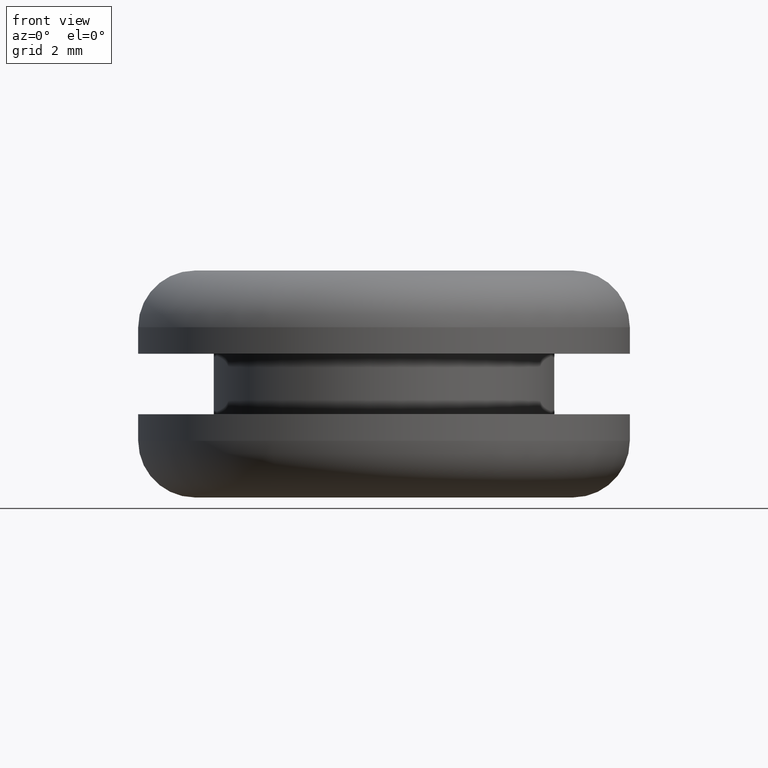
[diagram: clean part render]
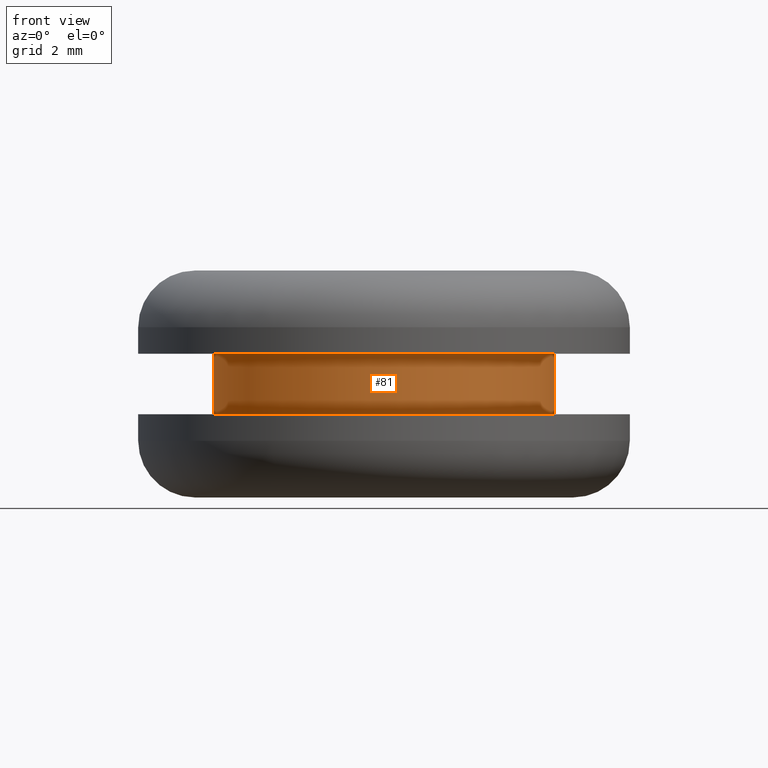
[diagram: same view with one face highlighted and labeled with its STEP entity id]
A machine part, front view. The second image highlights one B-rep face of the part: STEP entity #81.
In plain terms, the highlighted cylindrical surface (partial cylindrical patch) has radius 4.5 mm, axis along (0, 0, -1).
Its self-contained STEP definition (entity closure, byte-faithful):
#1 = CARTESIAN_POINT ( 'NONE',  ( 99.71049378546730700, 0.0000000000000000000, 141.7985603604342100 ) ) ;
#36 = CIRCLE ( 'NONE', #46, 4.500000000019890800 ) ;
#46 = AXIS2_PLACEMENT_3D ( 'NONE', #284, #325, #194 ) ;
#51 = CARTESIAN_POINT ( 'NONE',  ( 108.7104937855071000, 5.510910596187446600E-016, 140.1985603604344100 ) ) ;
#59 = DIRECTION ( 'NONE',  ( -1.000000000000000000, 0.0000000000000000000, 0.0000000000000000000 ) ) ;
#81 = ADVANCED_FACE ( 'NONE', ( #302 ), #368, .T. ) ;
#91 = CARTESIAN_POINT ( 'NONE',  ( 108.7104937855071000, 5.510910596187446600E-016, 141.7985603604342100 ) ) ;
#121 = CIRCLE ( 'NONE', #145, 4.500000000019890800 ) ;
#122 = ORIENTED_EDGE ( 'NONE', *, *, #209, .T. ) ;
#129 = VECTOR ( 'NONE', #378, 1000.000000000000000 ) ;
#130 = CARTESIAN_POINT ( 'NONE',  ( 104.2104937854872000, 0.0000000000000000000, 0.0000000000000000000 ) ) ;
#132 = EDGE_CURVE ( 'NONE', #150, #188, #168, .T. ) ;
#145 = AXIS2_PLACEMENT_3D ( 'NONE', #412, #366, #59 ) ;
#150 = VERTEX_POINT ( 'NONE', #91 ) ;
#168 = LINE ( 'NONE', #436, #262 ) ;
#169 = EDGE_LOOP ( 'NONE', ( #410, #199, #122, #313 ) ) ;
#188 = VERTEX_POINT ( 'NONE', #51 ) ;
#194 = DIRECTION ( 'NONE',  ( -1.000000000000000000, 0.0000000000000000000, 0.0000000000000000000 ) ) ;
#199 = ORIENTED_EDGE ( 'NONE', *, *, #299, .T. ) ;
#209 = EDGE_CURVE ( 'NONE', #292, #355, #345, .T. ) ;
#224 = CARTESIAN_POINT ( 'NONE',  ( 99.71049378546730700, 0.0000000000000000000, 0.0000000000000000000 ) ) ;
#233 = CARTESIAN_POINT ( 'NONE',  ( 99.71049378546730700, 0.0000000000000000000, 140.1985603604344100 ) ) ;
#241 = AXIS2_PLACEMENT_3D ( 'NONE', #130, #251, #474 ) ;
#251 = DIRECTION ( 'NONE',  ( 0.0000000000000000000, 0.0000000000000000000, -1.000000000000000000 ) ) ;
#255 = EDGE_CURVE ( 'NONE', #188, #355, #36, .T. ) ;
#262 = VECTOR ( 'NONE', #379, 1000.000000000000000 ) ;
#284 = CARTESIAN_POINT ( 'NONE',  ( 104.2104937854872000, 0.0000000000000000000, 140.1985603604344100 ) ) ;
#292 = VERTEX_POINT ( 'NONE', #1 ) ;
#299 = EDGE_CURVE ( 'NONE', #150, #292, #121, .T. ) ;
#302 = FACE_OUTER_BOUND ( 'NONE', #169, .T. ) ;
#313 = ORIENTED_EDGE ( 'NONE', *, *, #255, .F. ) ;
#325 = DIRECTION ( 'NONE',  ( 0.0000000000000000000, 0.0000000000000000000, -1.000000000000000000 ) ) ;
#345 = LINE ( 'NONE', #224, #129 ) ;
#355 = VERTEX_POINT ( 'NONE', #233 ) ;
#366 = DIRECTION ( 'NONE',  ( 0.0000000000000000000, 0.0000000000000000000, -1.000000000000000000 ) ) ;
#368 = CYLINDRICAL_SURFACE ( 'NONE', #241, 4.500000000019890800 ) ;
#378 = DIRECTION ( 'NONE',  ( 0.0000000000000000000, 0.0000000000000000000, -1.000000000000000000 ) ) ;
#379 = DIRECTION ( 'NONE',  ( 0.0000000000000000000, 0.0000000000000000000, -1.000000000000000000 ) ) ;
#410 = ORIENTED_EDGE ( 'NONE', *, *, #132, .F. ) ;
#412 = CARTESIAN_POINT ( 'NONE',  ( 104.2104937854872000, 0.0000000000000000000, 141.7985603604342100 ) ) ;
#436 = CARTESIAN_POINT ( 'NONE',  ( 108.7104937855071000, 5.510910596187447600E-016, 0.0000000000000000000 ) ) ;
#474 = DIRECTION ( 'NONE',  ( -1.000000000000000000, 0.0000000000000000000, 0.0000000000000000000 ) ) ;